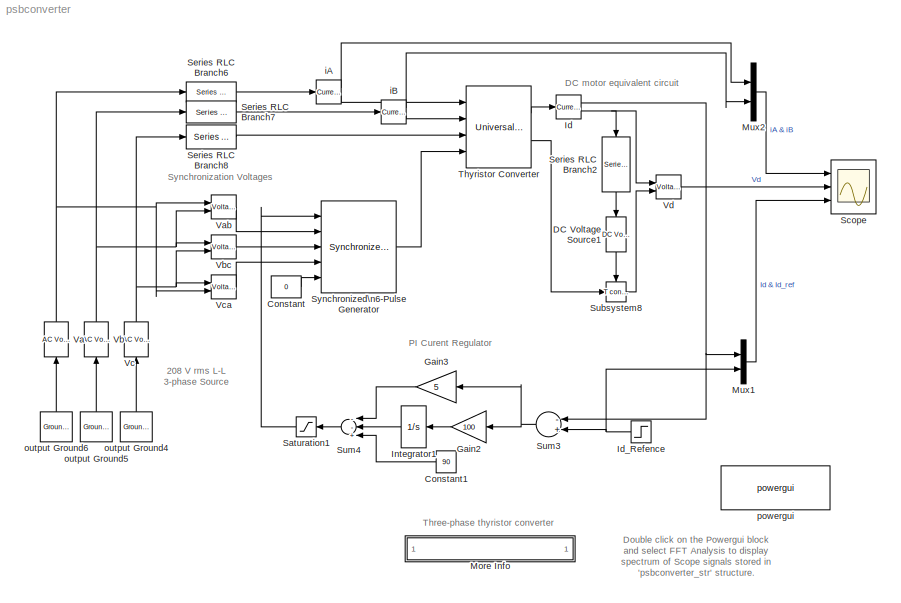
MODEL psbconverter
KIND model
CONFIG InitFcn = powericon('psbinitsys',bdroot);
BLOCK [Constant] Constant
  Value = 0
BLOCK [Constant] Constant1
  Value = 90
BLOCK [Reference] DC Voltage Source1  REF=powerlib2/Electrical\nSources/DC Voltage Source
  PSBOutputType = 1
  Ports = [1, 1]
  SourceBlock = powerlib2/Electrical\nSources/DC Voltage Source
  SourceType = DC Voltage Source
  Tag = PoWeRsYsTeMbLoCk
  V = -120
  mesure = None
BLOCK [Gain] Gain2
  Gain = 100
BLOCK [Gain] Gain3
  Gain = 5
BLOCK [Reference] Id  REF=powerlib2/Measurements/Current Measurement
  OutputType = Complex
  PSBOutputType = 01
  PSBequivalent = 0
  PhasorSimulation = off
  Ports = [1, 2]
  SourceBlock = powerlib2/Measurements/Current Measurement
  SourceType = Current Measurement
  Tag = PoWeRsYsTeMmEaSuReMeNt
BLOCK [Step] Id_Refence
  After = 25
  Before = 10
  SampleTime = 0
  Time = 0.04
BLOCK [Integrator] Integrator1
  InitialCondition = 20
  LimitOutput = on
  LowerSaturationLimit = 20
  Ports = [1, 1]
  UpperSaturationLimit = 160
BLOCK [SubSystem] More Info
  MaskDisplay = disp('? : Double click here for more info ')
  MaskIconFrame = off
  MaskIconOpaque = on
  MaskIconRotate = none
  MaskIconUnits = autoscale
  MinAlgLoopOccurrences = off
  Ports = []
  RTWSystemCode = Auto
  TreatAsAtomicUnit = off
BLOCK [Mux] Mux1
  Inputs = 2
  Ports = [2, 1]
BLOCK [Mux] Mux2
  Inputs = 2
  Ports = [2, 1]
BLOCK [Saturate] Saturation1
  LowerLimit = 20
  UpperLimit = 160
BLOCK [Scope] Scope
  DataFormat = StructureWithTime
  LimitDataPoints = off
  NumInputPorts = 3
  Ports = [3]
  SampleInput = on
  SampleTime = 1/60/512
  SaveName = psbconverter_str
  SaveToWorkspace = on
  TimeRange = 0.1
  YMax = 50~400~40
  YMin = -50~-200~-3.202157228752688e-017
  ZoomMode = xonly
BLOCK [Reference] Series RLC Branch2  REF=powerlib2/Elements/Series RLC Branch
  PSBOutputType = 1
  Ports = [1, 1]
  SourceBlock = powerlib2/Elements/Series RLC Branch
  SourceType = Series RLC Branch
  Tag = PoWeRsYsTeMbLoCk
  a = 1
  b = 20e-3
  c = inf
  mesure = None
BLOCK [Reference] Series RLC Branch6  REF=powerlib2/Elements/Series RLC Branch
  PSBOutputType = 1
  Ports = [1, 1]
  SourceBlock = powerlib2/Elements/Series RLC Branch
  SourceType = Series RLC Branch
  Tag = PoWeRsYsTeMbLoCk
  a = 0.01
  b = 1e-3
  c = inf
  mesure = None
BLOCK [Reference] Series RLC Branch7  REF=powerlib2/Elements/Series RLC Branch
  PSBOutputType = 1
  Ports = [1, 1]
  SourceBlock = powerlib2/Elements/Series RLC Branch
  SourceType = Series RLC Branch
  Tag = PoWeRsYsTeMbLoCk
  a = 0.01
  b = 1e-3
  c = inf
  mesure = None
BLOCK [Reference] Series RLC Branch8  REF=powerlib2/Elements/Series RLC Branch
  PSBOutputType = 1
  Ports = [1, 1]
  SourceBlock = powerlib2/Elements/Series RLC Branch
  SourceType = Series RLC Branch
  Tag = PoWeRsYsTeMbLoCk
  a = 0.01
  b = 1e-3
  c = inf
  mesure = None
BLOCK [Reference] Subsystem8  REF=powerlib2/Connectors/T connector
  PSBOutputType = 1
  Ports = [1, 1, 1]
  SourceBlock = powerlib2/Connectors/T connector
  SourceType = Bus Bar
  Tag = PoWeRsYsTeMbLoCk
BLOCK [Sum] Sum3
  Inputs = -+
  Ports = [2, 1]
BLOCK [Sum] Sum4
  Inputs = --+
  Ports = [3, 1]
BLOCK [Reference] Synchronized\n6-Pulse Generator  REF=powerlib_extras/Control \nBlocks/Synchronized\n6-Pulse Generator
  Double_Pulse = on
  Ports = [5, 1]
  SourceBlock = powerlib_extras/Control \nBlocks/Synchronized\n6-Pulse Generator
  SourceType = Synchronized 6-pulse generator
  freq = 60
  pwidth = 10
BLOCK [Reference] Thyristor Converter  REF=powerlib2/Power\nElectronics/Universal Bridge
  Lon = 0
  PSBOutputType = 111
  Ports = [4, 2]
  Ron = 1e-3
  SourceBlock = powerlib2/Power\nElectronics/Universal Bridge
  SourceType = Universal Bridge
  Tag = PoWeRsYsTeMbLoCk
  VFs = [  0.8  0.8  ]
  Vf = .8
  arms = 3
  cf = .1e-6
  confi = ABC as input terminals
  device = Thyristors
  gtoparameters = [ 10e-6 , 20e-6 ]
  igbtparameters = [ 1e-6 , 2e-6 ]
  injcc = 500
  mesure = None
BLOCK [Reference] Va  REF=powerlib2/Electrical\nSources/AC Voltage Source
  A = 208*sqrt(2/3)
  F = 60
  P = 0
  PSBOutputType = 1
  Ports = [1, 1]
  SourceBlock = powerlib2/Electrical\nSources/AC Voltage Source
  SourceType = AC Voltage Source
  Tag = PoWeRsYsTeMbLoCk
  mesure = None
  stime = 0
BLOCK [Reference] Vab  REF=powerlib2/Measurements/Voltage Measurement
  OutputType = Complex
  PSBOutputType = 0
  PSBequivalent = 0
  PhasorSimulation = off
  Ports = [2, 1]
  SourceBlock = powerlib2/Measurements/Voltage Measurement
  SourceType = Voltage Measurement
  Tag = PoWeRsYsTeMmEaSuReMeNt
BLOCK [Reference] Vb  REF=powerlib2/Electrical\nSources/AC Voltage Source
  A = 208*sqrt(2/3)
  F = 60
  P = -120
  PSBOutputType = 1
  Ports = [1, 1]
  SourceBlock = powerlib2/Electrical\nSources/AC Voltage Source
  SourceType = AC Voltage Source
  Tag = PoWeRsYsTeMbLoCk
  mesure = None
  stime = 0
BLOCK [Reference] Vbc  REF=powerlib2/Measurements/Voltage Measurement
  OutputType = Complex
  PSBOutputType = 0
  PSBequivalent = 0
  PhasorSimulation = off
  Ports = [2, 1]
  SourceBlock = powerlib2/Measurements/Voltage Measurement
  SourceType = Voltage Measurement
  Tag = PoWeRsYsTeMmEaSuReMeNt
BLOCK [Reference] Vc  REF=powerlib2/Electrical\nSources/AC Voltage Source
  A = 208*sqrt(2/3)
  F = 60
  P = 120
  PSBOutputType = 1
  Ports = [1, 1]
  SourceBlock = powerlib2/Electrical\nSources/AC Voltage Source
  SourceType = AC Voltage Source
  Tag = PoWeRsYsTeMbLoCk
  mesure = None
  stime = 0
BLOCK [Reference] Vca  REF=powerlib2/Measurements/Voltage Measurement
  OutputType = Complex
  PSBOutputType = 0
  PSBequivalent = 0
  PhasorSimulation = off
  Ports = [2, 1]
  SourceBlock = powerlib2/Measurements/Voltage Measurement
  SourceType = Voltage Measurement
  Tag = PoWeRsYsTeMmEaSuReMeNt
BLOCK [Reference] Vd  REF=powerlib2/Measurements/Voltage Measurement
  OutputType = Complex
  PSBOutputType = 0
  PSBequivalent = 0
  PhasorSimulation = off
  Ports = [2, 1]
  SourceBlock = powerlib2/Measurements/Voltage Measurement
  SourceType = Voltage Measurement
  Tag = PoWeRsYsTeMmEaSuReMeNt
BLOCK [Reference] iA  REF=powerlib2/Measurements/Current Measurement
  OutputType = Complex
  PSBOutputType = 01
  PSBequivalent = 0
  PhasorSimulation = off
  Ports = [1, 2]
  SourceBlock = powerlib2/Measurements/Current Measurement
  SourceType = Current Measurement
  Tag = PoWeRsYsTeMmEaSuReMeNt
BLOCK [Reference] iB  REF=powerlib2/Measurements/Current Measurement
  OutputType = Complex
  PSBOutputType = 01
  PSBequivalent = 0
  PhasorSimulation = off
  Ports = [1, 2]
  SourceBlock = powerlib2/Measurements/Current Measurement
  SourceType = Current Measurement
  Tag = PoWeRsYsTeMmEaSuReMeNt
BLOCK [Reference] output Ground4  REF=powerlib2/Connectors/Ground (output)
  PSBOutputType = 1
  Ports = [0, 1]
  SourceBlock = powerlib2/Connectors/Ground (output)
  SourceType = Ground
  Tag = PoWeRsYsTeMbLoCk
BLOCK [Reference] output Ground5  REF=powerlib2/Connectors/Ground (output)
  PSBOutputType = 1
  Ports = [0, 1]
  SourceBlock = powerlib2/Connectors/Ground (output)
  SourceType = Ground
  Tag = PoWeRsYsTeMbLoCk
BLOCK [Reference] output Ground6  REF=powerlib2/Connectors/Ground (output)
  PSBOutputType = 1
  Ports = [0, 1]
  SourceBlock = powerlib2/Connectors/Ground (output)
  SourceType = Ground
  Tag = PoWeRsYsTeMbLoCk
BLOCK [Reference] powergui  REF=powerlib2/powergui
  DisplayStyle = off
  Frange = [0:2:500]
  FreqAxis = on
  MaxFrequency = 2000
  Ports = []
  RmsSteady = 1
  SourceBlock = powerlib2/powergui
  SourceType = PSB option menu block
  StartTime = 0.1-2/60
  Ts = 0
  Xlog = on
  Ylog = off
  ZoomFFT = on
  cycles = 2
  display = off
  echomessages = off
  frequency = 60
  frequencyindice = 1
  frequencyindicesteady = 1
  fundamental = 60
  methode = off
  save = off
  structure = psbconverter_str
  variable = ZData
ANNOTATION (root): 208 V rms L-L\n3-phase Source
ANNOTATION (root): DC motor equivalent circuit
ANNOTATION (root): Double click on the Powergui block \nand select FFT Analysis to display\nspectrum of Scope signals stored in\n'psbconverter_str' structure.
ANNOTATION (root): PI Curent Regulator
ANNOTATION (root): Synchronization Voltages
ANNOTATION (root): Three-phase thyristor converter
ANNOTATION More Info: A DC motor represented by a simplified RL-E model is fed from an inductive three-phase source through a six-pulse\nthyristor bridge. A pulse generator synchronized on the source voltages provides the trigger pulses for the six thyristors.\n\nThe converter output current is controlled by a PI current regulator built with Simulink blocks.\nA step signal is applied to the reference input to test the ...<+257ch>
ANNOTATION More Info: Circuit Description
ANNOTATION More Info: Demonstration
ANNOTATION More Info: H. Le-Huy (Universite Laval, Quebec)
ANNOTATION More Info: Start simulation and observe current and voltage waveforms on the Scope block.\n\nWhen simulation is completed, open the Powergui and select 'FFT Analysis' to display the 0 - 2000 Hz frequency spectrum of signals saved \nin the 'psbconverter_str' structure. The FFT will be performed on a 2-cycle window starting at t = 0.1 - 2/60 (last 2 cycles of recording). \nInput labeled 'Ia & Ib' and signal nu...<+655ch>
ANNOTATION More Info: This demonstration illustrates use of the Universal Bridge block to simulate a three-phase six-pulse\nconverter and harmonic analysis using the Powergui/FFT tool.
LINE Constant1:1 -> Sum4:3
LINE Constant:1 -> Synchronized\n6-Pulse Generator:5
LINE DC Voltage Source1:1 -> Subsystem8:enable
LINE Gain2:1 -> Integrator1:1
LINE Gain3:1 -> Sum4:1
NET Id:1 -> Mux1:1, Sum3:1
NET Id:2 -> Series RLC Branch2:1, Vd:1
NET Id_Refence:1 -> Mux1:2, Sum3:2
LINE Integrator1:1 -> Sum4:2
LINE Mux1:1 -> Scope:3
LINE Mux2:1 -> Scope:1
LINE Saturation1:1 -> Synchronized\n6-Pulse Generator:1
LINE Series RLC Branch2:1 -> DC Voltage Source1:1
LINE Series RLC Branch6:1 -> iA:1
LINE Series RLC Branch7:1 -> iB:1
LINE Series RLC Branch8:1 -> Thyristor Converter:3
LINE Subsystem8:1 -> Vd:2
NET Sum3:1 -> Gain2:1, Gain3:1
LINE Sum4:1 -> Saturation1:1
LINE Synchronized\n6-Pulse Generator:1 -> Thyristor Converter:4
LINE Thyristor Converter:1 -> Id:1
LINE Thyristor Converter:2 -> Subsystem8:1
NET Va:1 -> Series RLC Branch6:1, Vab:1, Vca:2
LINE Vab:1 -> Synchronized\n6-Pulse Generator:2
NET Vb:1 -> Series RLC Branch7:1, Vab:2, Vbc:1
LINE Vbc:1 -> Synchronized\n6-Pulse Generator:3
NET Vc:1 -> Series RLC Branch8:1, Vbc:2, Vca:1
LINE Vca:1 -> Synchronized\n6-Pulse Generator:4
LINE Vd:1 -> Scope:2
LINE iA:1 -> Mux2:1
LINE iA:2 -> Thyristor Converter:1
LINE iB:1 -> Mux2:2
LINE iB:2 -> Thyristor Converter:2
LINE output Ground4:1 -> Vc:1
LINE output Ground5:1 -> Vb:1
LINE output Ground6:1 -> Va:1
note: NET lines group one-source signal fan-out (src -> all destinations, sorted); 1:1 wires keep LINE
